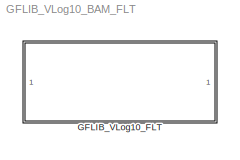
MODEL GFLIB_VLog10_BAM_FLT
KIND model
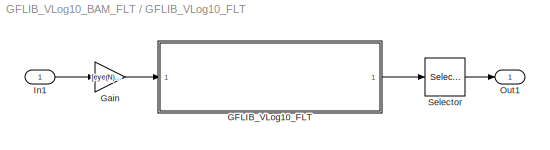
BLOCK [SubSystem] GFLIB_VLog10_FLT
  Ports = [1, 1]
  RequestExecContextInheritance = off
  SID = 21
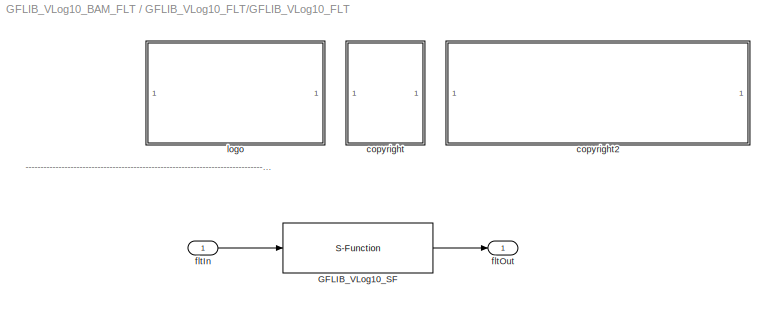
BLOCK [SubSystem] GFLIB_VLog10_FLT/GFLIB_VLog10_FLT
  Ports = [1, 1]
  RequestExecContextInheritance = off
  SID = 1
BLOCK [S-Function] GFLIB_VLog10_FLT/GFLIB_VLog10_FLT/GFLIB_VLog10_SF
  EnableBusSupport = off
  FunctionName = GFLIB_VLog10_SF_FLT
  Parameters = u32N
  Ports = [1, 1]
  SID = 4
BLOCK [SubSystem] GFLIB_VLog10_FLT/GFLIB_VLog10_FLT/<copyright redacted>
  Ports = []
  RequestExecContextInheritance = off
  SID = 11
BLOCK [SubSystem] GFLIB_VLog10_FLT/GFLIB_VLog10_FLT/copyright2
  Ports = []
  RequestExecContextInheritance = off
  SID = 14
BLOCK [Inport] GFLIB_VLog10_FLT/GFLIB_VLog10_FLT/fltIn
  IconDisplay = Port number
  SID = 5
BLOCK [Outport] GFLIB_VLog10_FLT/GFLIB_VLog10_FLT/fltOut
  IconDisplay = Port number
  SID = 6
BLOCK [SubSystem] GFLIB_VLog10_FLT/GFLIB_VLog10_FLT/logo
  Ports = []
  RequestExecContextInheritance = off
  SID = 7
BLOCK [Gain] GFLIB_VLog10_FLT/Gain
  Gain = [eye(N) zeros(N,4096-N)]'
  Multiplication = Matrix(K*u)
  OutDataTypeStr = Inherit: Inherit via internal rule
  ParamDataTypeStr = Inherit: Inherit via internal rule
  SID = 20
  SaturateOnIntegerOverflow = off
BLOCK [Inport] GFLIB_VLog10_FLT/In1
  IconDisplay = Port number
  SID = 22
BLOCK [Outport] GFLIB_VLog10_FLT/Out1
  IconDisplay = Port number
  SID = 23
BLOCK [Selector] GFLIB_VLog10_FLT/Selector
  IndexOptions = Starting index (dialog)
  OutputSizes = N
  Ports = [1, 1]
  SID = 19
ANNOTATION GFLIB_VLog10_FLT/GFLIB_VLog10_FLT: ---------------------------------------------------------------------------------------------------------------------------------------------------------------------------------------------------
LINE GFLIB_VLog10_FLT/GFLIB_VLog10_FLT/GFLIB_VLog10_SF:1 -> GFLIB_VLog10_FLT/GFLIB_VLog10_FLT/fltOut:1
LINE GFLIB_VLog10_FLT/GFLIB_VLog10_FLT/fltIn:1 -> GFLIB_VLog10_FLT/GFLIB_VLog10_FLT/GFLIB_VLog10_SF:1
LINE GFLIB_VLog10_FLT/GFLIB_VLog10_FLT:1 -> GFLIB_VLog10_FLT/Selector:1
LINE GFLIB_VLog10_FLT/Gain:1 -> GFLIB_VLog10_FLT/GFLIB_VLog10_FLT:1
LINE GFLIB_VLog10_FLT/In1:1 -> GFLIB_VLog10_FLT/Gain:1
LINE GFLIB_VLog10_FLT/Selector:1 -> GFLIB_VLog10_FLT/Out1:1
